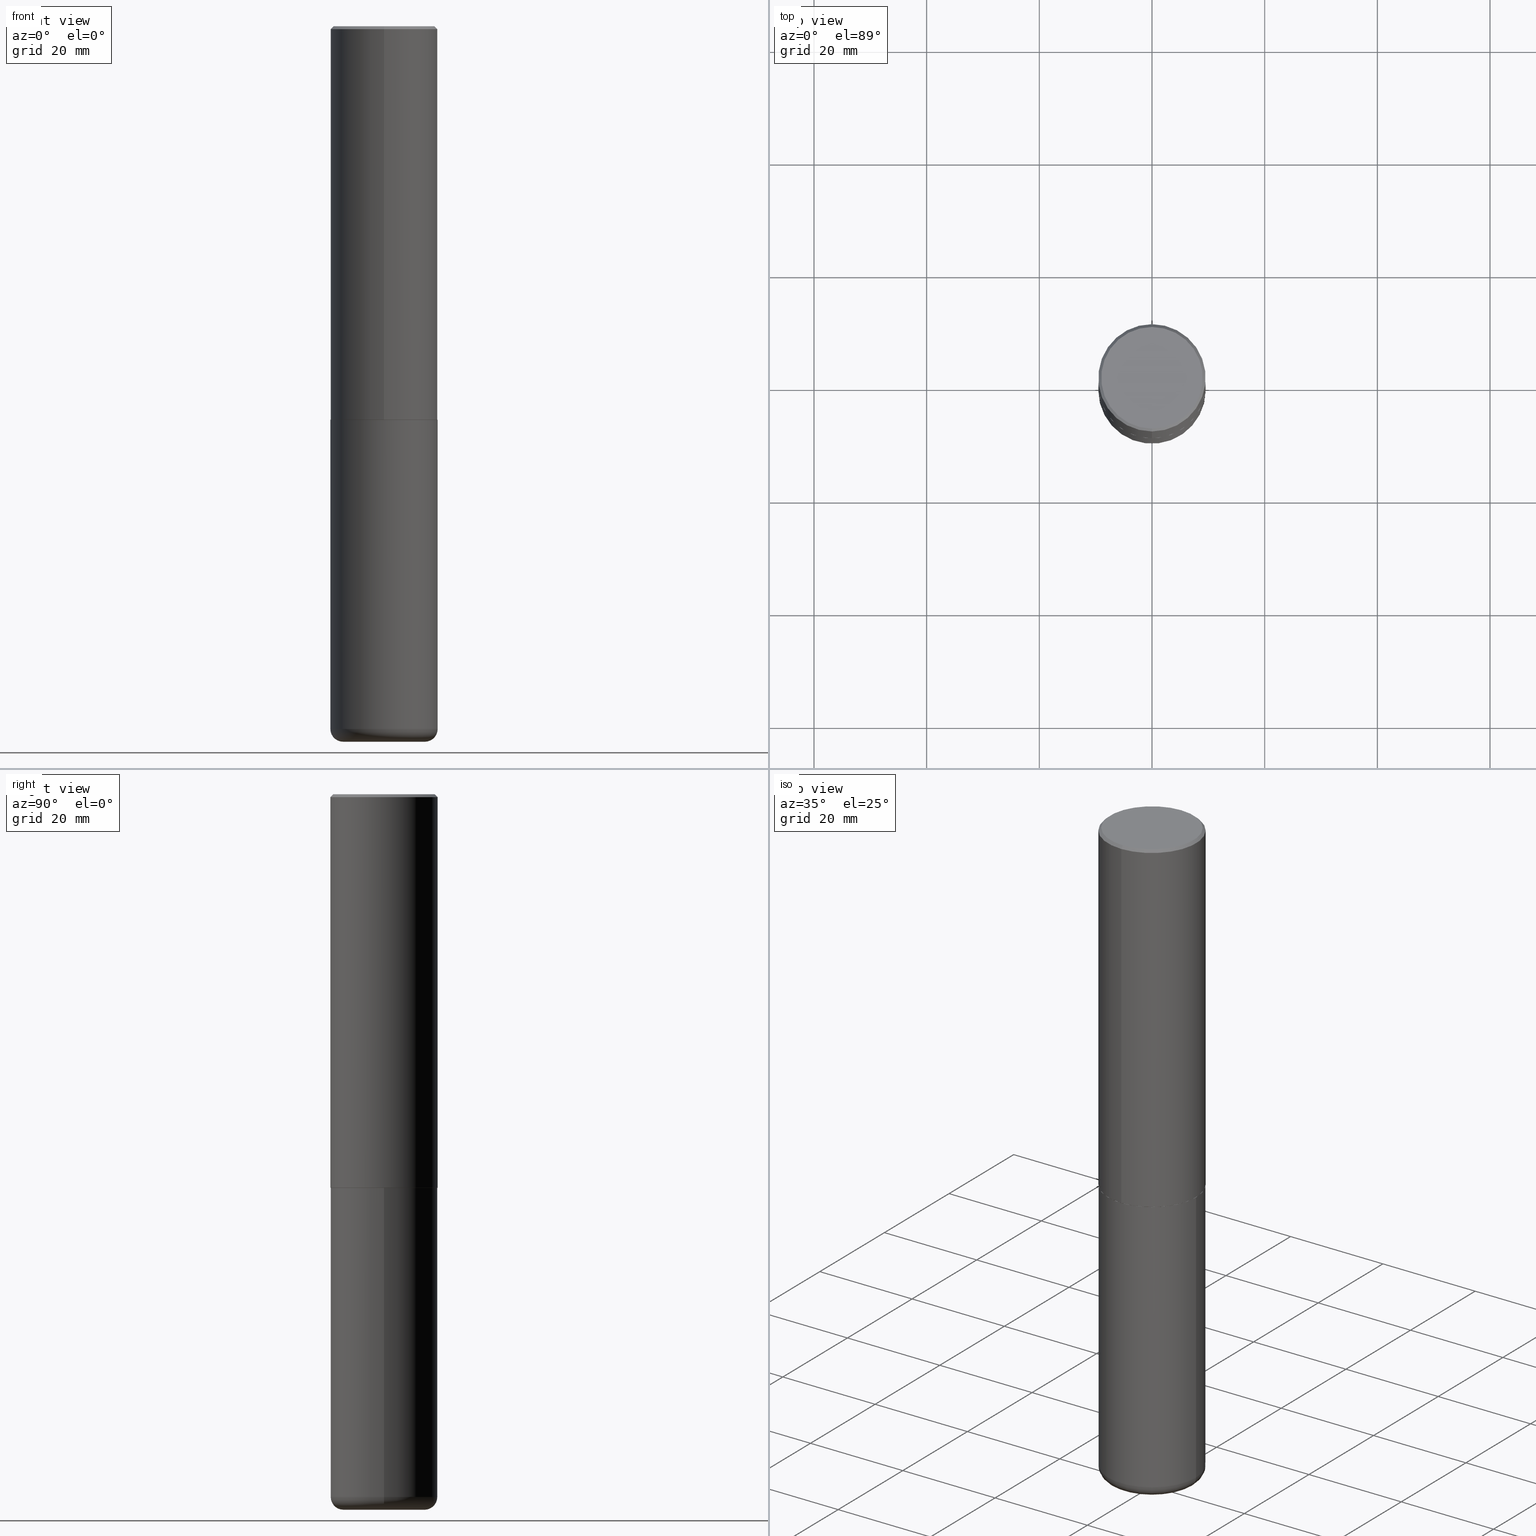
[diagram: canonical four-view strip — front | top / right | iso, engineering-drawing reading convention]
A machine part, canonical four-view strip (front | top / right | iso — engineering-drawing reading convention). The complete STEP part file that produces these views, byte-faithful:
ISO-10303-21;
HEADER;
FILE_DESCRIPTION (( 'STEP AP203' ),
    '1' );
FILE_NAME ('37665.STEP',
    '2024-03-02T07:30:31',
    ( '' ),
    ( '' ),
    'SwSTEP 2.0',
    'SolidWorks 2023',
    '' );
FILE_SCHEMA (( 'CONFIG_CONTROL_DESIGN' ));
ENDSEC;

DATA;
#1 = DIRECTION ( 'NONE',  ( -2.445468806185136597E-29, 3.491481338843145583E-15, 1.000000000000000000 ) ) ;
#2 = SECURITY_CLASSIFICATION_LEVEL ( 'unclassified' ) ;
#3 = FACE_OUTER_BOUND ( 'NONE', #58, .T. ) ;
#4 = ORIENTED_EDGE ( 'NONE', *, *, #355, .F. ) ;
#5 = DATE_AND_TIME ( #206, #189 ) ;
#6 = FACE_OUTER_BOUND ( 'NONE', #28, .T. ) ;
#7 = VERTEX_POINT ( 'NONE', #367 ) ;
#8 = CARTESIAN_POINT ( 'NONE',  ( -1.141397163745304909E-45, 1.628849886601155835E-31, 4.666305460853910467E-17 ) ) ;
#9 = ADVANCED_FACE ( 'NONE', ( #6 ), #40, .F. ) ;
#10 = COORDINATED_UNIVERSAL_TIME_OFFSET ( 5, 0, .BEHIND. ) ;
#11 = CARTESIAN_POINT ( 'NONE',  ( 0.2850000000000000311, -1.944755105735631653E-14, -5.000000000000000000 ) ) ;
#12 = EDGE_CURVE ( 'NONE', #304, #396, #326, .T. ) ;
#13 = EDGE_LOOP ( 'NONE', ( #16, #173, #261, #364 ) ) ;
#14 = AXIS2_PLACEMENT_3D ( 'NONE', #318, #282, #312 ) ;
#15 = DIRECTION ( 'NONE',  ( 1.000000000000000000, -6.982962677686266711E-15, 0.000000000000000000 ) ) ;
#16 = ORIENTED_EDGE ( 'NONE', *, *, #262, .F. ) ;
#17 = DIRECTION ( 'NONE',  ( -6.982962677686265922E-15, -1.000000000000000000, 3.490662795793665557E-15 ) ) ;
#18 = DIRECTION ( 'NONE',  ( -1.000000000000000000, 6.982962677686265922E-15, -4.876176775795935793E-29 ) ) ;
#19 = ORGANIZATION ( 'UNSPECIFIED', 'UNSPECIFIED', '' ) ;
#20 = LINE ( 'NONE', #156, #154 ) ;
#21 = CONICAL_SURFACE ( 'NONE', #82, 0.3739999999999999991, 0.7853981633977213939 ) ;
#22 = DIRECTION ( 'NONE',  ( -6.982962677686266711E-15, -1.000000000000000000, 3.491481338843145583E-15 ) ) ;
#23 = CARTESIAN_POINT ( 'NONE',  ( 2.660982545421643429E-15, 0.3739999999999903957, -2.750000000000000888 ) ) ;
#24 = DIRECTION ( 'NONE',  ( -6.982962677686265922E-15, -1.000000000000000000, 2.913971193241877611E-15 ) ) ;
#25 = ORIENTED_EDGE ( 'NONE', *, *, #117, .F. ) ;
#26 = FACE_OUTER_BOUND ( 'NONE', #267, .T. ) ;
#27 = DIRECTION ( 'NONE',  ( -6.982962677686266711E-15, -1.000000000000000000, 3.490662795793665951E-15 ) ) ;
#28 = EDGE_LOOP ( 'NONE', ( #140, #120 ) ) ;
#29 = DIRECTION ( 'NONE',  ( -2.446040391741596606E-29, 3.490662795793665557E-15, 1.000000000000000000 ) ) ;
#30 = AXIS2_PLACEMENT_3D ( 'NONE', #89, #182, #50 ) ;
#31 = AXIS2_PLACEMENT_3D ( 'NONE', #65, #393, #363 ) ;
#32 = APPROVAL_STATUS ( 'not_yet_approved' ) ;
#33 = EDGE_CURVE ( 'NONE', #149, #213, #160, .T. ) ;
#34 = APPLICATION_PROTOCOL_DEFINITION ( 'international standard', 'config_control_design', 1994, #91 ) ;
#35 = ORIENTED_EDGE ( 'NONE', *, *, #121, .F. ) ;
#36 = PERSON_AND_ORGANIZATION ( #174, #19 ) ;
#37 = CARTESIAN_POINT ( 'NONE',  ( -0.3750000000000000555, -1.070783826866887333E-14, -2.750000000000000000 ) ) ;
#38 = AXIS2_PLACEMENT_3D ( 'NONE', #192, #129, #385 ) ;
#39 =( CONVERSION_BASED_UNIT ( 'INCH', #327 ) LENGTH_UNIT ( ) NAMED_UNIT ( #135 ) );
#40 = PLANE ( 'NONE',  #81 ) ;
#41 = APPROVAL_STATUS ( 'not_yet_approved' ) ;
#42 = CARTESIAN_POINT ( 'NONE',  ( 0.000000000000000000, 0.000000000000000000, 0.000000000000000000 ) ) ;
#43 = DIRECTION ( 'NONE',  ( -2.445468806185136597E-29, 3.491481338843145583E-15, 1.000000000000000000 ) ) ;
#44 = AXIS2_PLACEMENT_3D ( 'NONE', #105, #1, #332 ) ;
#45 = CIRCLE ( 'NONE', #195, 0.3750000000000000555 ) ;
#46 = CARTESIAN_POINT ( 'NONE',  ( 6.725039217009124520E-29, -9.601573681818649859E-15, -2.750000000000000000 ) ) ;
#47 = EDGE_CURVE ( 'NONE', #416, #61, #216, .T. ) ;
#48 = DIRECTION ( 'NONE',  ( -4.851104656540954809E-15, -0.7071067811865486830, -0.7071067811865463515 ) ) ;
#49 = CC_DESIGN_DATE_AND_TIME_ASSIGNMENT ( #243, #365, ( #411 ) ) ;
#50 = DIRECTION ( 'NONE',  ( 1.000000000000000000, -6.982962677686269077E-15, 0.000000000000000000 ) ) ;
#51 = ADVANCED_FACE ( 'NONE', ( #3 ), #137, .T. ) ;
#52 = CARTESIAN_POINT ( 'NONE',  ( 1.200725183836902132E-28, -1.714317337371984662E-14, -4.910000000000000142 ) ) ;
#53 = AXIS2_PLACEMENT_3D ( 'NONE', #407, #122, #17 ) ;
#54 = DIRECTION ( 'NONE',  ( 1.000000000000000000, -6.982962677686269077E-15, 4.883557194083113462E-29 ) ) ;
#55 = VERTEX_POINT ( 'NONE', #37 ) ;
#56 = CARTESIAN_POINT ( 'NONE',  ( -0.3749999999999999445, 2.664535259100375303E-15, -1.844600658845589318E-29 ) ) ;
#57 = LINE ( 'NONE', #100, #384 ) ;
#58 = EDGE_LOOP ( 'NONE', ( #276, #287, #66, #145 ) ) ;
#59 = CARTESIAN_POINT ( 'NONE',  ( 6.726611077289389265E-29, -9.599322688432580971E-15, -2.750000000000000000 ) ) ;
#60 = DIRECTION ( 'NONE',  ( 1.000000000000000000, -6.982962677686269077E-15, 0.000000000000000000 ) ) ;
#61 = VERTEX_POINT ( 'NONE', #11 ) ;
#62 = VERTEX_POINT ( 'NONE', #170 ) ;
#63 = CALENDAR_DATE ( 2024, 2, 3 ) ;
#64 = CARTESIAN_POINT ( 'NONE',  ( 2.478951750578624209E-15, 0.3549999999999999822, -1.215853765202481601E-15 ) ) ;
#65 = CARTESIAN_POINT ( 'NONE',  ( 0.000000000000000000, 0.000000000000000000, 0.000000000000000000 ) ) ;
#66 = ORIENTED_EDGE ( 'NONE', *, *, #150, .T. ) ;
#67 = ADVANCED_FACE ( 'NONE', ( #101 ), #274, .T. ) ;
#68 = ORIENTED_EDGE ( 'NONE', *, *, #205, .T. ) ;
#69 = PERSON_AND_ORGANIZATION ( #174, #19 ) ;
#70 = EDGE_LOOP ( 'NONE', ( #328, #244, #346, #178 ) ) ;
#71 = AXIS2_PLACEMENT_3D ( 'NONE', #161, #194, #93 ) ;
#72 = ORIENTED_EDGE ( 'NONE', *, *, #152, .T. ) ;
#73 = APPROVAL ( #297, 'UNSPECIFIED' ) ;
#74 = AXIS2_PLACEMENT_3D ( 'NONE', #258, #383, #289 ) ;
#75 = PERSON_AND_ORGANIZATION ( #174, #19 ) ;
#76 = DIRECTION ( 'NONE',  ( -6.982962677686265922E-15, -1.000000000000000000, 3.490662795793665557E-15 ) ) ;
#77 = ORIENTED_EDGE ( 'NONE', *, *, #246, .F. ) ;
#78 = EDGE_LOOP ( 'NONE', ( #4, #134, #72, #238 ) ) ;
#79 = DIRECTION ( 'NONE',  ( -2.445468806185136597E-29, 3.491481338843145583E-15, 1.000000000000000000 ) ) ;
#80 = SHAPE_DEFINITION_REPRESENTATION ( #373, #224 ) ;
#81 = AXIS2_PLACEMENT_3D ( 'NONE', #64, #339, #399 ) ;
#82 = AXIS2_PLACEMENT_3D ( 'NONE', #59, #191, #225 ) ;
#83 = DIRECTION ( 'NONE',  ( 1.000000000000000000, -6.982962677686273810E-15, 0.000000000000000000 ) ) ;
#84 = PLANE ( 'NONE',  #264 ) ;
#85 = EDGE_CURVE ( 'NONE', #213, #149, #294, .T. ) ;
#86 = CARTESIAN_POINT ( 'NONE',  ( 1.222734403092568523E-28, -1.745740669421572989E-14, -5.000000000000000000 ) ) ;
#87 = ORIENTED_EDGE ( 'NONE', *, *, #355, .T. ) ;
#88 = EDGE_CURVE ( 'NONE', #61, #416, #290, .T. ) ;
#89 = CARTESIAN_POINT ( 'NONE',  ( 1.200725183836902132E-28, -1.714317337371984662E-14, -4.910000000000000142 ) ) ;
#90 = AXIS2_PLACEMENT_3D ( 'NONE', #265, #322, #94 ) ;
#91 = APPLICATION_CONTEXT ( 'configuration controlled 3d designs of mechanical parts and assemblies' ) ;
#92 = CARTESIAN_POINT ( 'NONE',  ( 4.892080783483214581E-31, -6.981325591587361238E-17, -0.02000000000000008715 ) ) ;
#93 = DIRECTION ( 'NONE',  ( -6.982962677686266711E-15, -1.000000000000000000, 2.921762560068730595E-15 ) ) ;
#94 = DIRECTION ( 'NONE',  ( -6.982962677686265922E-15, -1.000000000000000000, 2.913971193241877611E-15 ) ) ;
#95 = CIRCLE ( 'NONE', #30, 0.3749999999999999445 ) ;
#96 = APPROVAL ( #32, 'UNSPECIFIED' ) ;
#97 = CONICAL_SURFACE ( 'NONE', #155, 0.3750000000000000555, 0.7853981633974465026 ) ;
#98 = CARTESIAN_POINT ( 'NONE',  ( 4.892080783483214581E-31, -6.981325591587361238E-17, -0.02000000000000008715 ) ) ;
#99 = ORIENTED_EDGE ( 'NONE', *, *, #205, .F. ) ;
#100 = CARTESIAN_POINT ( 'NONE',  ( 2.664535259100376880E-15, 0.3750000000000002220, -1.308998548422625521E-15 ) ) ;
#101 = FACE_OUTER_BOUND ( 'NONE', #143, .T. ) ;
#102 = AXIS2_PLACEMENT_3D ( 'NONE', #46, #285, #248 ) ;
#103 = LOCAL_TIME ( 2, 30, 31.00000000000000000, #133 ) ;
#104 = DATE_AND_TIME ( #241, #184 ) ;
#105 = CARTESIAN_POINT ( 'NONE',  ( 1.222734403092568523E-28, -1.745740669421572989E-14, -5.000000000000000000 ) ) ;
#106 = DATE_AND_TIME ( #63, #124 ) ;
#107 = ORIENTED_EDGE ( 'NONE', *, *, #313, .F. ) ;
#108 = APPROVAL ( #41, 'UNSPECIFIED' ) ;
#109 = PERSON_AND_ORGANIZATION ( #174, #19 ) ;
#110 = CONICAL_SURFACE ( 'NONE', #71, 0.3739999999999999991, 0.7853981633977213939 ) ;
#111 = EDGE_LOOP ( 'NONE', ( #255, #233 ) ) ;
#112 = ORIENTED_EDGE ( 'NONE', *, *, #269, .F. ) ;
#113 = CARTESIAN_POINT ( 'NONE',  ( 0.3750000000000000555, -1.222018468595100145E-14, -2.750000000000000000 ) ) ;
#114 = CARTESIAN_POINT ( 'NONE',  ( 6.726611077289389265E-29, -9.599322688432580971E-15, -2.750000000000000000 ) ) ;
#115 = LOCAL_TIME ( 2, 30, 31.00000000000000000, #10 ) ;
#116 = CARTESIAN_POINT ( 'NONE',  ( 0.3749999999999999445, -2.618611004132349622E-15, 1.828566290923475642E-29 ) ) ;
#117 = EDGE_CURVE ( 'NONE', #304, #7, #20, .T. ) ;
#118 = APPROVAL_DATE_TIME ( #366, #96 ) ;
#119 = DIRECTION ( 'NONE',  ( 1.000000000000000000, -6.982962677686266711E-15, 0.000000000000000000 ) ) ;
#120 = ORIENTED_EDGE ( 'NONE', *, *, #85, .T. ) ;
#121 = EDGE_CURVE ( 'NONE', #277, #62, #95, .T. ) ;
#122 = DIRECTION ( 'NONE',  ( -2.446040391741596045E-29, 3.490662795793665557E-15, 1.000000000000000000 ) ) ;
#123 = DIRECTION ( 'NONE',  ( -4.937700262165896205E-15, -0.7071067811867381980, 0.7071067811863568364 ) ) ;
#124 = LOCAL_TIME ( 2, 30, 31.00000000000000000, #302 ) ;
#125 = ADVANCED_FACE ( 'NONE', ( #251 ), #84, .T. ) ;
#126 = DIRECTION ( 'NONE',  ( -6.982962677686265922E-15, -1.000000000000000000, 3.494488891895536035E-15 ) ) ;
#127 = DIRECTION ( 'NONE',  ( 2.446040391741596606E-29, -3.490662795793665557E-15, -1.000000000000000000 ) ) ;
#128 = CC_DESIGN_PERSON_AND_ORGANIZATION_ASSIGNMENT ( #307, #305, ( #358 ) ) ;
#129 = DIRECTION ( 'NONE',  ( 2.438088387897960049E-29, -3.491481338843145188E-15, -1.000000000000000000 ) ) ;
#130 = AXIS2_PLACEMENT_3D ( 'NONE', #92, #127, #352 ) ;
#131 = ORIENTED_EDGE ( 'NONE', *, *, #88, .F. ) ;
#132 = CARTESIAN_POINT ( 'NONE',  ( 1.200725183836902132E-28, -1.714317337371984662E-14, -4.910000000000000142 ) ) ;
#133 = COORDINATED_UNIVERSAL_TIME_OFFSET ( 5, 0, .BEHIND. ) ;
#134 = ORIENTED_EDGE ( 'NONE', *, *, #414, .T. ) ;
#135 = DIMENSIONAL_EXPONENTS ( 1.000000000000000000, 0.000000000000000000, 0.000000000000000000, 0.000000000000000000, 0.000000000000000000, 0.000000000000000000, 0.000000000000000000 ) ;
#136 = PERSON_AND_ORGANIZATION ( #174, #19 ) ;
#137 = CYLINDRICAL_SURFACE ( 'NONE', #227, 0.3749999999999999445 ) ;
#138 = AXIS2_PLACEMENT_3D ( 'NONE', #148, #314, #119 ) ;
#139 = CC_DESIGN_DATE_AND_TIME_ASSIGNMENT ( #106, #337, ( #280 ) ) ;
#140 = ORIENTED_EDGE ( 'NONE', *, *, #33, .T. ) ;
#141 = PERSON_AND_ORGANIZATION_ROLE ( 'design_supplier' ) ;
#142 = VERTEX_POINT ( 'NONE', #377 ) ;
#143 = EDGE_LOOP ( 'NONE', ( #350, #210, #242, #335 ) ) ;
#144 = PERSON_AND_ORGANIZATION_ROLE ( 'design_owner' ) ;
#145 = ORIENTED_EDGE ( 'NONE', *, *, #187, .F. ) ;
#146 = AXIS2_PLACEMENT_3D ( 'NONE', #52, #43, #185 ) ;
#147 = TOROIDAL_SURFACE ( 'NONE', #417, 0.2850000000000000311, 0.08999999999999989952 ) ;
#148 = CARTESIAN_POINT ( 'NONE',  ( 1.222734403092568523E-28, -1.745740669421572989E-14, -5.000000000000000000 ) ) ;
#149 = VERTEX_POINT ( 'NONE', #153 ) ;
#150 = EDGE_CURVE ( 'NONE', #277, #236, #340, .T. ) ;
#151 = DIRECTION ( 'NONE',  ( 4.937700262164538576E-15, 0.7071067811865437980, -0.7071067811865512365 ) ) ;
#152 = EDGE_CURVE ( 'NONE', #397, #142, #370, .T. ) ;
#153 = CARTESIAN_POINT ( 'NONE',  ( 2.548781377355487113E-15, 0.3549999999999999822, -1.192522237898212341E-15 ) ) ;
#154 = VECTOR ( 'NONE', #219, 39.37007874015748143 ) ;
#155 = AXIS2_PLACEMENT_3D ( 'NONE', #98, #324, #165 ) ;
#156 = CARTESIAN_POINT ( 'NONE',  ( 2.657429831742841742E-15, 0.3739999999999903957, -2.750000000000000888 ) ) ;
#157 = ADVANCED_FACE ( 'NONE', ( #222 ), #415, .T. ) ;
#158 = DIRECTION ( 'NONE',  ( -2.446040391741596606E-29, 3.490662795793665557E-15, 1.000000000000000000 ) ) ;
#159 = CARTESIAN_POINT ( 'NONE',  ( 6.724165036897648492E-29, -9.595832025636787455E-15, -2.749000000000000110 ) ) ;
#160 = CIRCLE ( 'NONE', #175, 0.3549999999999999822 ) ;
#161 = CARTESIAN_POINT ( 'NONE',  ( 6.726611077289389265E-29, -9.599322688432580971E-15, -2.750000000000000000 ) ) ;
#162 = CC_DESIGN_SECURITY_CLASSIFICATION ( #411, ( #358 ) ) ;
#163 = DIRECTION ( 'NONE',  ( -2.446040391741596606E-29, 3.490662795793665557E-15, 1.000000000000000000 ) ) ;
#164 = FACE_OUTER_BOUND ( 'NONE', #70, .T. ) ;
#165 = DIRECTION ( 'NONE',  ( 6.982962677686265922E-15, 1.000000000000000000, -3.494488891895536035E-15 ) ) ;
#166 = EDGE_CURVE ( 'NONE', #236, #55, #256, .T. ) ;
#167 = VECTOR ( 'NONE', #408, 39.37007874015748143 ) ;
#168 = CC_DESIGN_APPROVAL ( #73, ( #358 ) ) ;
#169 = COORDINATED_UNIVERSAL_TIME_OFFSET ( 5, 0, .BEHIND. ) ;
#170 = CARTESIAN_POINT ( 'NONE',  ( -0.3749999999999999445, -1.447863811461947092E-14, -4.910000000000000142 ) ) ;
#171 = ORIENTED_EDGE ( 'NONE', *, *, #333, .T. ) ;
#172 =( NAMED_UNIT ( * ) PLANE_ANGLE_UNIT ( ) SI_UNIT ( $, .RADIAN. ) );
#173 = ORIENTED_EDGE ( 'NONE', *, *, #33, .F. ) ;
#174 = PERSON ( 'UNSPECIFIED', 'UNSPECIFIED', 'UNSPECIFIED', ('UNSPECIFIED'), ('UNSPECIFIED'), ('UNSPECIFIED') ) ;
#175 = AXIS2_PLACEMENT_3D ( 'NONE', #8, #271, #76 ) ;
#176 = AXIS2_PLACEMENT_3D ( 'NONE', #381, #412, #126 ) ;
#177 = ADVANCED_FACE ( 'NONE', ( #286 ), #316, .T. ) ;
#178 = ORIENTED_EDGE ( 'NONE', *, *, #333, .F. ) ;
#179 = ORIENTED_EDGE ( 'NONE', *, *, #12, .T. ) ;
#180 =( LENGTH_UNIT ( ) NAMED_UNIT ( * ) SI_UNIT ( $, .METRE. ) );
#181 = ORIENTED_EDGE ( 'NONE', *, *, #152, .F. ) ;
#182 = DIRECTION ( 'NONE',  ( -2.445468806185136597E-29, 3.491481338843145583E-15, 1.000000000000000000 ) ) ;
#183 = CC_DESIGN_PERSON_AND_ORGANIZATION_ASSIGNMENT ( #270, #360, ( #280 ) ) ;
#184 = LOCAL_TIME ( 2, 30, 31.00000000000000000, #169 ) ;
#185 = DIRECTION ( 'NONE',  ( 1.000000000000000000, -6.982962677686269077E-15, 4.883557194083113462E-29 ) ) ;
#186 = CARTESIAN_POINT ( 'NONE',  ( 0.2850000000000000311, -1.913331773686043011E-14, -4.910000000000000142 ) ) ;
#187 = EDGE_CURVE ( 'NONE', #55, #236, #410, .T. ) ;
#188 = FACE_OUTER_BOUND ( 'NONE', #214, .T. ) ;
#189 = LOCAL_TIME ( 2, 30, 31.00000000000000000, #275 ) ;
#190 = DIRECTION ( 'NONE',  ( -2.445468806185136597E-29, 3.491481338843145583E-15, 1.000000000000000000 ) ) ;
#191 = DIRECTION ( 'NONE',  ( -2.446040391741596606E-29, 3.490662795793665557E-15, 1.000000000000000000 ) ) ;
#192 = CARTESIAN_POINT ( 'NONE',  ( 6.725039217009124520E-29, -9.601573681818649859E-15, -2.750000000000000000 ) ) ;
#193 = EDGE_LOOP ( 'NONE', ( #25, #179, #171, #395 ) ) ;
#194 = DIRECTION ( 'NONE',  ( -2.446040391741596606E-29, 3.490662795793665557E-15, 1.000000000000000000 ) ) ;
#195 = AXIS2_PLACEMENT_3D ( 'NONE', #249, #163, #260 ) ;
#196 = DIRECTION ( 'NONE',  ( -2.445468806185136597E-29, 3.491481338843145583E-15, 1.000000000000000000 ) ) ;
#197 = PRODUCT_RELATED_PRODUCT_CATEGORY ( 'detail', '', ( #369 ) ) ;
#198 = PLANE ( 'NONE',  #38 ) ;
#199 = ORIENTED_EDGE ( 'NONE', *, *, #47, .T. ) ;
#200 = PERSON_AND_ORGANIZATION_ROLE ( 'classification_officer' ) ;
#201 = AXIS2_PLACEMENT_3D ( 'NONE', #239, #79, #378 ) ;
#202 = CIRCLE ( 'NONE', #310, 0.08999999999999992728 ) ;
#203 = APPLICATION_CONTEXT ( 'configuration controlled 3d designs of mechanical parts and assemblies' ) ;
#204 = CALENDAR_DATE ( 2024, 2, 3 ) ;
#205 = EDGE_CURVE ( 'NONE', #61, #277, #202, .T. ) ;
#206 = CALENDAR_DATE ( 2024, 2, 3 ) ;
#207 = ORIENTED_EDGE ( 'NONE', *, *, #398, .T. ) ;
#208 = EDGE_CURVE ( 'NONE', #396, #304, #357, .T. ) ;
#209 = CIRCLE ( 'NONE', #74, 0.08999999999999992728 ) ;
#210 = ORIENTED_EDGE ( 'NONE', *, *, #368, .T. ) ;
#211 = CONICAL_SURFACE ( 'NONE', #130, 0.3750000000000000555, 0.7853981633974465026 ) ;
#212 = APPLICATION_PROTOCOL_DEFINITION ( 'international standard', 'config_control_design', 1994, #203 ) ;
#213 = VERTEX_POINT ( 'NONE', #374 ) ;
#214 = EDGE_LOOP ( 'NONE', ( #279, #400 ) ) ;
#215 = CARTESIAN_POINT ( 'NONE',  ( 2.618611004132350411E-15, 0.3749999999999999445, -0.02000000000000139513 ) ) ;
#216 = CIRCLE ( 'NONE', #44, 0.2850000000000000311 ) ;
#217 = CC_DESIGN_APPROVAL ( #96, ( #411 ) ) ;
#218 = DIRECTION ( 'NONE',  ( -2.446040391741596606E-29, 3.490662795793665557E-15, 1.000000000000000000 ) ) ;
#219 = DIRECTION ( 'NONE',  ( 5.024295867789434219E-15, 0.7071067811867430830, 0.7071067811863519514 ) ) ;
#220 = LINE ( 'NONE', #215, #392 ) ;
#221 = DESIGN_CONTEXT ( 'detailed design', #91, 'design' ) ;
#222 = FACE_OUTER_BOUND ( 'NONE', #330, .T. ) ;
#223 = ORIENTED_EDGE ( 'NONE', *, *, #88, .T. ) ;
#224 = ADVANCED_BREP_SHAPE_REPRESENTATION ( '37665', ( #380, #376, #31 ), #347 ) ;
#225 = DIRECTION ( 'NONE',  ( -6.982962677686266711E-15, -1.000000000000000000, 2.921762560068730595E-15 ) ) ;
#226 = FACE_OUTER_BOUND ( 'NONE', #13, .T. ) ;
#227 = AXIS2_PLACEMENT_3D ( 'NONE', #42, #361, #308 ) ;
#228 = LINE ( 'NONE', #259, #229 ) ;
#229 = VECTOR ( 'NONE', #123, 39.37007874015748143 ) ;
#230 = ADVANCED_FACE ( 'NONE', ( #188 ), #342, .F. ) ;
#231 = ORIENTED_EDGE ( 'NONE', *, *, #262, .T. ) ;
#232 = CARTESIAN_POINT ( 'NONE',  ( -2.611628041454596160E-15, -0.3740000000000096581, -2.749999999999998668 ) ) ;
#233 = ORIENTED_EDGE ( 'NONE', *, *, #187, .T. ) ;
#234 = MECHANICAL_CONTEXT ( 'NONE', #203, 'mechanical' ) ;
#235 = AXIS2_PLACEMENT_3D ( 'NONE', #114, #158, #252 ) ;
#236 = VERTEX_POINT ( 'NONE', #113 ) ;
#237 = APPROVAL_PERSON_ORGANIZATION ( #75, #96, #389 ) ;
#238 = ORIENTED_EDGE ( 'NONE', *, *, #323, .F. ) ;
#239 = CARTESIAN_POINT ( 'NONE',  ( 0.000000000000000000, 0.000000000000000000, 0.000000000000000000 ) ) ;
#240 = CC_DESIGN_PERSON_AND_ORGANIZATION_ASSIGNMENT ( #109, #144, ( #369 ) ) ;
#241 = CALENDAR_DATE ( 2024, 2, 3 ) ;
#242 = ORIENTED_EDGE ( 'NONE', *, *, #166, .F. ) ;
#243 = DATE_AND_TIME ( #204, #115 ) ;
#244 = ORIENTED_EDGE ( 'NONE', *, *, #117, .T. ) ;
#245 = CC_DESIGN_APPROVAL ( #108, ( #280 ) ) ;
#246 = EDGE_CURVE ( 'NONE', #149, #253, #220, .T. ) ;
#247 = ORIENTED_EDGE ( 'NONE', *, *, #85, .F. ) ;
#248 = DIRECTION ( 'NONE',  ( 1.000000000000000000, -6.982962677686266711E-15, 0.000000000000000000 ) ) ;
#249 = CARTESIAN_POINT ( 'NONE',  ( 4.892080783483214581E-31, -6.981325591587361238E-17, -0.02000000000000008715 ) ) ;
#250 = AXIS2_PLACEMENT_3D ( 'NONE', #159, #320, #24 ) ;
#251 = FACE_OUTER_BOUND ( 'NONE', #281, .T. ) ;
#252 = DIRECTION ( 'NONE',  ( -6.982962677686266711E-15, -1.000000000000000000, 2.921762560068730595E-15 ) ) ;
#253 = VERTEX_POINT ( 'NONE', #403 ) ;
#254 = LINE ( 'NONE', #345, #341 ) ;
#255 = ORIENTED_EDGE ( 'NONE', *, *, #166, .T. ) ;
#256 = CIRCLE ( 'NONE', #372, 0.3750000000000000555 ) ;
#257 = AXIS2_PLACEMENT_3D ( 'NONE', #348, #29, #27 ) ;
#258 = CARTESIAN_POINT ( 'NONE',  ( -0.2850000000000000311, -1.511812657680356008E-14, -4.910000000000000142 ) ) ;
#259 = CARTESIAN_POINT ( 'NONE',  ( -2.611628041454596160E-15, -0.3740000000000096581, -2.749999999999998668 ) ) ;
#260 = DIRECTION ( 'NONE',  ( -6.982962677686265922E-15, -1.000000000000000000, 3.494488891895536035E-15 ) ) ;
#261 = ORIENTED_EDGE ( 'NONE', *, *, #246, .T. ) ;
#262 = EDGE_CURVE ( 'NONE', #213, #142, #254, .T. ) ;
#263 = CIRCLE ( 'NONE', #266, 0.3749999999999999445 ) ;
#264 = AXIS2_PLACEMENT_3D ( 'NONE', #86, #402, #18 ) ;
#265 = CARTESIAN_POINT ( 'NONE',  ( 6.724165036897648492E-29, -9.595832025636787455E-15, -2.749000000000000110 ) ) ;
#266 = AXIS2_PLACEMENT_3D ( 'NONE', #295, #196, #60 ) ;
#267 = EDGE_LOOP ( 'NONE', ( #247, #231, #391, #77 ) ) ;
#268 = LINE ( 'NONE', #56, #336 ) ;
#269 = EDGE_CURVE ( 'NONE', #142, #253, #45, .T. ) ;
#270 = PERSON_AND_ORGANIZATION ( #174, #19 ) ;
#271 = DIRECTION ( 'NONE',  ( -2.446040391741596606E-29, 3.490662795793665557E-15, 1.000000000000000000 ) ) ;
#272 = ORIENTED_EDGE ( 'NONE', *, *, #315, .T. ) ;
#273 = APPROVAL_ROLE ( '' ) ;
#274 = CYLINDRICAL_SURFACE ( 'NONE', #201, 0.3749999999999999445 ) ;
#275 = COORDINATED_UNIVERSAL_TIME_OFFSET ( 5, 0, .BEHIND. ) ;
#276 = ORIENTED_EDGE ( 'NONE', *, *, #368, .F. ) ;
#277 = VERTEX_POINT ( 'NONE', #349 ) ;
#278 = PERSON_AND_ORGANIZATION ( #174, #19 ) ;
#279 = ORIENTED_EDGE ( 'NONE', *, *, #208, .F. ) ;
#280 = PRODUCT_DEFINITION ( 'UNKNOWN', '', #358, #221 ) ;
#281 = EDGE_LOOP ( 'NONE', ( #131, #387 ) ) ;
#282 = DIRECTION ( 'NONE',  ( -2.446040391741596606E-29, 3.490662795793665557E-15, 1.000000000000000000 ) ) ;
#283 = ADVANCED_FACE ( 'NONE', ( #354 ), #110, .T. ) ;
#284 = DIRECTION ( 'NONE',  ( -2.446040391741596606E-29, 3.490662795793665557E-15, 1.000000000000000000 ) ) ;
#285 = DIRECTION ( 'NONE',  ( -2.445468806185136597E-29, 3.491481338843145583E-15, 1.000000000000000000 ) ) ;
#286 = FACE_OUTER_BOUND ( 'NONE', #78, .T. ) ;
#287 = ORIENTED_EDGE ( 'NONE', *, *, #313, .T. ) ;
#288 = CC_DESIGN_PERSON_AND_ORGANIZATION_ASSIGNMENT ( #278, #200, ( #411 ) ) ;
#289 = DIRECTION ( 'NONE',  ( -1.000000000000000000, 7.105427357600996337E-15, 0.000000000000000000 ) ) ;
#290 = CIRCLE ( 'NONE', #138, 0.2850000000000000311 ) ;
#291 = APPROVAL_PERSON_ORGANIZATION ( #36, #73, #273 ) ;
#292 = CYLINDRICAL_SURFACE ( 'NONE', #257, 0.3750000000000002220 ) ;
#293 = FACE_OUTER_BOUND ( 'NONE', #338, .T. ) ;
#294 = CIRCLE ( 'NONE', #379, 0.3549999999999999822 ) ;
#295 = CARTESIAN_POINT ( 'NONE',  ( 1.200725183836902132E-28, -1.714317337371984662E-14, -4.910000000000000142 ) ) ;
#296 = CIRCLE ( 'NONE', #90, 0.3750000000000003886 ) ;
#297 = APPROVAL_STATUS ( 'not_yet_approved' ) ;
#298 = CC_DESIGN_PERSON_AND_ORGANIZATION_ASSIGNMENT ( #69, #141, ( #358 ) ) ;
#299 = APPROVAL_ROLE ( '' ) ;
#300 = UNCERTAINTY_MEASURE_WITH_UNIT (LENGTH_MEASURE( 1.000000000000000082E-05 ), #39, 'distance_accuracy_value', 'NONE');
#301 = DIRECTION ( 'NONE',  ( -6.982962677686266711E-15, -1.000000000000000000, 2.921762560068730595E-15 ) ) ;
#302 = COORDINATED_UNIVERSAL_TIME_OFFSET ( 5, 0, .BEHIND. ) ;
#303 = CLOSED_SHELL ( 'NONE', ( #67, #157, #344, #51, #404, #125 ) ) ;
#304 = VERTEX_POINT ( 'NONE', #23 ) ;
#305 = PERSON_AND_ORGANIZATION_ROLE ( 'creator' ) ;
#306 = CARTESIAN_POINT ( 'NONE',  ( 6.726611077289389265E-29, -9.599322688432580971E-15, -2.750000000000000000 ) ) ;
#307 = PERSON_AND_ORGANIZATION ( #174, #19 ) ;
#308 = DIRECTION ( 'NONE',  ( 1.000000000000000000, -6.982962677686266711E-15, 4.876176775795935793E-29 ) ) ;
#309 = CARTESIAN_POINT ( 'NONE',  ( 6.725039217009124520E-29, -9.601573681818649859E-15, -2.750000000000000000 ) ) ;
#310 = AXIS2_PLACEMENT_3D ( 'NONE', #186, #22, #83 ) ;
#311 = APPROVAL_PERSON_ORGANIZATION ( #136, #108, #299 ) ;
#312 = DIRECTION ( 'NONE',  ( -6.982962677686266711E-15, -1.000000000000000000, 3.490662795793665951E-15 ) ) ;
#313 = EDGE_CURVE ( 'NONE', #62, #277, #263, .T. ) ;
#314 = DIRECTION ( 'NONE',  ( -2.445468806185136597E-29, 3.491481338843145583E-15, 1.000000000000000000 ) ) ;
#315 = EDGE_CURVE ( 'NONE', #397, #7, #296, .T. ) ;
#316 = CYLINDRICAL_SURFACE ( 'NONE', #14, 0.3750000000000002220 ) ;
#317 = CIRCLE ( 'NONE', #250, 0.3750000000000003886 ) ;
#318 = CARTESIAN_POINT ( 'NONE',  ( 0.000000000000000000, 0.000000000000000000, 0.000000000000000000 ) ) ;
#319 = CARTESIAN_POINT ( 'NONE',  ( -2.618611004132284935E-15, -0.3750000000000099920, -2.748999999999999222 ) ) ;
#320 = DIRECTION ( 'NONE',  ( -2.446040391741596606E-29, 3.490662795793665557E-15, 1.000000000000000000 ) ) ;
#321 = AXIS2_PLACEMENT_3D ( 'NONE', #306, #390, #301 ) ;
#322 = DIRECTION ( 'NONE',  ( -2.446040391741596606E-29, 3.490662795793665557E-15, 1.000000000000000000 ) ) ;
#323 = EDGE_CURVE ( 'NONE', #253, #142, #406, .T. ) ;
#324 = DIRECTION ( 'NONE',  ( 2.446040391741596606E-29, -3.490662795793665557E-15, -1.000000000000000000 ) ) ;
#325 = FACE_OUTER_BOUND ( 'NONE', #359, .T. ) ;
#326 = CIRCLE ( 'NONE', #321, 0.3739999999999999991 ) ;
#327 = LENGTH_MEASURE_WITH_UNIT ( LENGTH_MEASURE( 0.02539999999999999897 ), #180 );
#328 = ORIENTED_EDGE ( 'NONE', *, *, #208, .T. ) ;
#329 = CALENDAR_DATE ( 2024, 2, 3 ) ;
#330 = EDGE_LOOP ( 'NONE', ( #223, #207, #35, #99 ) ) ;
#331 = APPROVAL_DATE_TIME ( #5, #108 ) ;
#332 = DIRECTION ( 'NONE',  ( 1.000000000000000000, -6.982962677686266711E-15, 0.000000000000000000 ) ) ;
#333 = EDGE_CURVE ( 'NONE', #396, #397, #228, .T. ) ;
#334 = APPROVAL_DATE_TIME ( #104, #73 ) ;
#335 = ORIENTED_EDGE ( 'NONE', *, *, #150, .F. ) ;
#336 = VECTOR ( 'NONE', #409, 39.37007874015748143 ) ;
#337 = DATE_TIME_ROLE ( 'creation_date' ) ;
#338 = EDGE_LOOP ( 'NONE', ( #394, #199, #68, #107 ) ) ;
#339 = DIRECTION ( 'NONE',  ( 2.446040391741596045E-29, -3.490662795793665557E-15, -1.000000000000000000 ) ) ;
#340 = LINE ( 'NONE', #116, #167 ) ;
#341 = VECTOR ( 'NONE', #48, 39.37007874015748143 ) ;
#342 = PLANE ( 'NONE',  #53 ) ;
#343 = CARTESIAN_POINT ( 'NONE',  ( -1.141397163745304909E-45, 1.628849886601155835E-31, 4.666305460853910467E-17 ) ) ;
#344 = ADVANCED_FACE ( 'NONE', ( #413 ), #198, .F. ) ;
#345 = CARTESIAN_POINT ( 'NONE',  ( -2.572686749164323547E-15, -0.3750000000000001110, -0.01999999999999877570 ) ) ;
#346 = ORIENTED_EDGE ( 'NONE', *, *, #315, .F. ) ;
#347 =( GEOMETRIC_REPRESENTATION_CONTEXT ( 3 ) GLOBAL_UNCERTAINTY_ASSIGNED_CONTEXT ( ( #300 ) ) GLOBAL_UNIT_ASSIGNED_CONTEXT ( ( #39, #172, #356 ) ) REPRESENTATION_CONTEXT ( 'NONE', 'WORKASPACE' ) );
#348 = CARTESIAN_POINT ( 'NONE',  ( 0.000000000000000000, 0.000000000000000000, 0.000000000000000000 ) ) ;
#349 = CARTESIAN_POINT ( 'NONE',  ( 0.3749999999999999445, -1.976178437785219664E-14, -4.910000000000000142 ) ) ;
#350 = ORIENTED_EDGE ( 'NONE', *, *, #121, .T. ) ;
#351 = CLOSED_SHELL ( 'NONE', ( #386, #353, #375, #362, #177, #283, #230, #9 ) ) ;
#352 = DIRECTION ( 'NONE',  ( 6.982962677686265922E-15, 1.000000000000000000, -3.494488891895536035E-15 ) ) ;
#353 = ADVANCED_FACE ( 'NONE', ( #325 ), #292, .T. ) ;
#354 = FACE_OUTER_BOUND ( 'NONE', #193, .T. ) ;
#355 = EDGE_CURVE ( 'NONE', #7, #253, #57, .T. ) ;
#356 =( NAMED_UNIT ( * ) SI_UNIT ( $, .STERADIAN. ) SOLID_ANGLE_UNIT ( ) );
#357 = CIRCLE ( 'NONE', #235, 0.3739999999999999991 ) ;
#358 = PRODUCT_DEFINITION_FORMATION_WITH_SPECIFIED_SOURCE ( 'ANY', '', #369, .NOT_KNOWN. ) ;
#359 = EDGE_LOOP ( 'NONE', ( #272, #87, #112, #181 ) ) ;
#360 = PERSON_AND_ORGANIZATION_ROLE ( 'creator' ) ;
#361 = DIRECTION ( 'NONE',  ( -2.445468806185136597E-29, 3.491481338843145583E-15, 1.000000000000000000 ) ) ;
#362 = ADVANCED_FACE ( 'NONE', ( #226 ), #97, .T. ) ;
#363 = DIRECTION ( 'NONE',  ( 1.000000000000000000, 0.000000000000000000, 0.000000000000000000 ) ) ;
#364 = ORIENTED_EDGE ( 'NONE', *, *, #323, .T. ) ;
#365 = DATE_TIME_ROLE ( 'classification_date' ) ;
#366 = DATE_AND_TIME ( #329, #103 ) ;
#367 = CARTESIAN_POINT ( 'NONE',  ( 2.664535259100411196E-15, 0.3749999999999907296, -2.749000000000000998 ) ) ;
#368 = EDGE_CURVE ( 'NONE', #62, #55, #268, .T. ) ;
#369 = PRODUCT ( '37665', '37665', '', ( #234 ) ) ;
#370 = LINE ( 'NONE', #401, #405 ) ;
#371 = DIRECTION ( 'NONE',  ( -6.982962677686265922E-15, -1.000000000000000000, 3.490662795793665557E-15 ) ) ;
#372 = AXIS2_PLACEMENT_3D ( 'NONE', #309, #190, #15 ) ;
#373 = PRODUCT_DEFINITION_SHAPE ( 'NONE', 'NONE',  #280 ) ;
#374 = CARTESIAN_POINT ( 'NONE',  ( -2.504081769186608216E-15, -0.3549999999999999822, 1.285848347115290366E-15 ) ) ;
#375 = ADVANCED_FACE ( 'NONE', ( #26 ), #211, .T. ) ;
#376 = MANIFOLD_SOLID_BREP ( 'Body-Move/Copy2[2]', #351 ) ;
#377 = CARTESIAN_POINT ( 'NONE',  ( -2.572686749164323547E-15, -0.3750000000000001110, -0.01999999999999877570 ) ) ;
#378 = DIRECTION ( 'NONE',  ( 1.000000000000000000, -6.982962677686266711E-15, 4.876176775795935793E-29 ) ) ;
#379 = AXIS2_PLACEMENT_3D ( 'NONE', #343, #284, #371 ) ;
#380 = MANIFOLD_SOLID_BREP ( 'Body-Move/Copy2[1]', #303 ) ;
#381 = CARTESIAN_POINT ( 'NONE',  ( 4.892080783483214581E-31, -6.981325591587361238E-17, -0.02000000000000008715 ) ) ;
#382 = DIRECTION ( 'NONE',  ( -2.446040391741596606E-29, 3.490662795793665557E-15, 1.000000000000000000 ) ) ;
#383 = DIRECTION ( 'NONE',  ( 7.105427357601001859E-15, 1.000000000000000000, -3.491481338843145583E-15 ) ) ;
#384 = VECTOR ( 'NONE', #382, 39.37007874015748143 ) ;
#385 = DIRECTION ( 'NONE',  ( -1.000000000000000000, 6.982962677686265922E-15, -4.876176775795935793E-29 ) ) ;
#386 = ADVANCED_FACE ( 'NONE', ( #164 ), #21, .T. ) ;
#387 = ORIENTED_EDGE ( 'NONE', *, *, #47, .F. ) ;
#388 = DIRECTION ( 'NONE',  ( -2.445468806185136597E-29, 3.491481338843145583E-15, 1.000000000000000000 ) ) ;
#389 = APPROVAL_ROLE ( '' ) ;
#390 = DIRECTION ( 'NONE',  ( -2.446040391741596606E-29, 3.490662795793665557E-15, 1.000000000000000000 ) ) ;
#391 = ORIENTED_EDGE ( 'NONE', *, *, #269, .T. ) ;
#392 = VECTOR ( 'NONE', #151, 39.37007874015748143 ) ;
#393 = DIRECTION ( 'NONE',  ( 0.000000000000000000, 0.000000000000000000, 1.000000000000000000 ) ) ;
#394 = ORIENTED_EDGE ( 'NONE', *, *, #398, .F. ) ;
#395 = ORIENTED_EDGE ( 'NONE', *, *, #414, .F. ) ;
#396 = VERTEX_POINT ( 'NONE', #232 ) ;
#397 = VERTEX_POINT ( 'NONE', #319 ) ;
#398 = EDGE_CURVE ( 'NONE', #416, #62, #209, .T. ) ;
#399 = DIRECTION ( 'NONE',  ( 6.982962677686265922E-15, 1.000000000000000000, -3.490662795793665557E-15 ) ) ;
#400 = ORIENTED_EDGE ( 'NONE', *, *, #12, .F. ) ;
#401 = CARTESIAN_POINT ( 'NONE',  ( -2.618611004132351594E-15, -0.3750000000000002220, 1.308998548422625521E-15 ) ) ;
#402 = DIRECTION ( 'NONE',  ( 2.438088387897960049E-29, -3.491481338843145188E-15, -1.000000000000000000 ) ) ;
#403 = CARTESIAN_POINT ( 'NONE',  ( 2.618611004132350411E-15, 0.3749999999999999445, -0.02000000000000139513 ) ) ;
#404 = ADVANCED_FACE ( 'NONE', ( #293 ), #147, .T. ) ;
#405 = VECTOR ( 'NONE', #218, 39.37007874015748143 ) ;
#406 = CIRCLE ( 'NONE', #176, 0.3750000000000000555 ) ;
#407 = CARTESIAN_POINT ( 'NONE',  ( 6.726611077289389265E-29, -9.599322688432580971E-15, -2.750000000000000000 ) ) ;
#408 = DIRECTION ( 'NONE',  ( -2.445468806185136877E-29, 3.491481338843145188E-15, 1.000000000000000000 ) ) ;
#409 = DIRECTION ( 'NONE',  ( -2.445468806185136877E-29, 3.491481338843145188E-15, 1.000000000000000000 ) ) ;
#410 = CIRCLE ( 'NONE', #102, 0.3750000000000000555 ) ;
#411 = SECURITY_CLASSIFICATION ( '', '', #2 ) ;
#412 = DIRECTION ( 'NONE',  ( -2.446040391741596606E-29, 3.490662795793665557E-15, 1.000000000000000000 ) ) ;
#413 = FACE_OUTER_BOUND ( 'NONE', #111, .T. ) ;
#414 = EDGE_CURVE ( 'NONE', #7, #397, #317, .T. ) ;
#415 = TOROIDAL_SURFACE ( 'NONE', #146, 0.2850000000000000311, 0.08999999999999989952 ) ;
#416 = VERTEX_POINT ( 'NONE', #418 ) ;
#417 = AXIS2_PLACEMENT_3D ( 'NONE', #132, #388, #54 ) ;
#418 = CARTESIAN_POINT ( 'NONE',  ( -0.2850000000000000311, -1.495549900595945556E-14, -5.000000000000000000 ) ) ;
ENDSEC;
END-ISO-10303-21;
